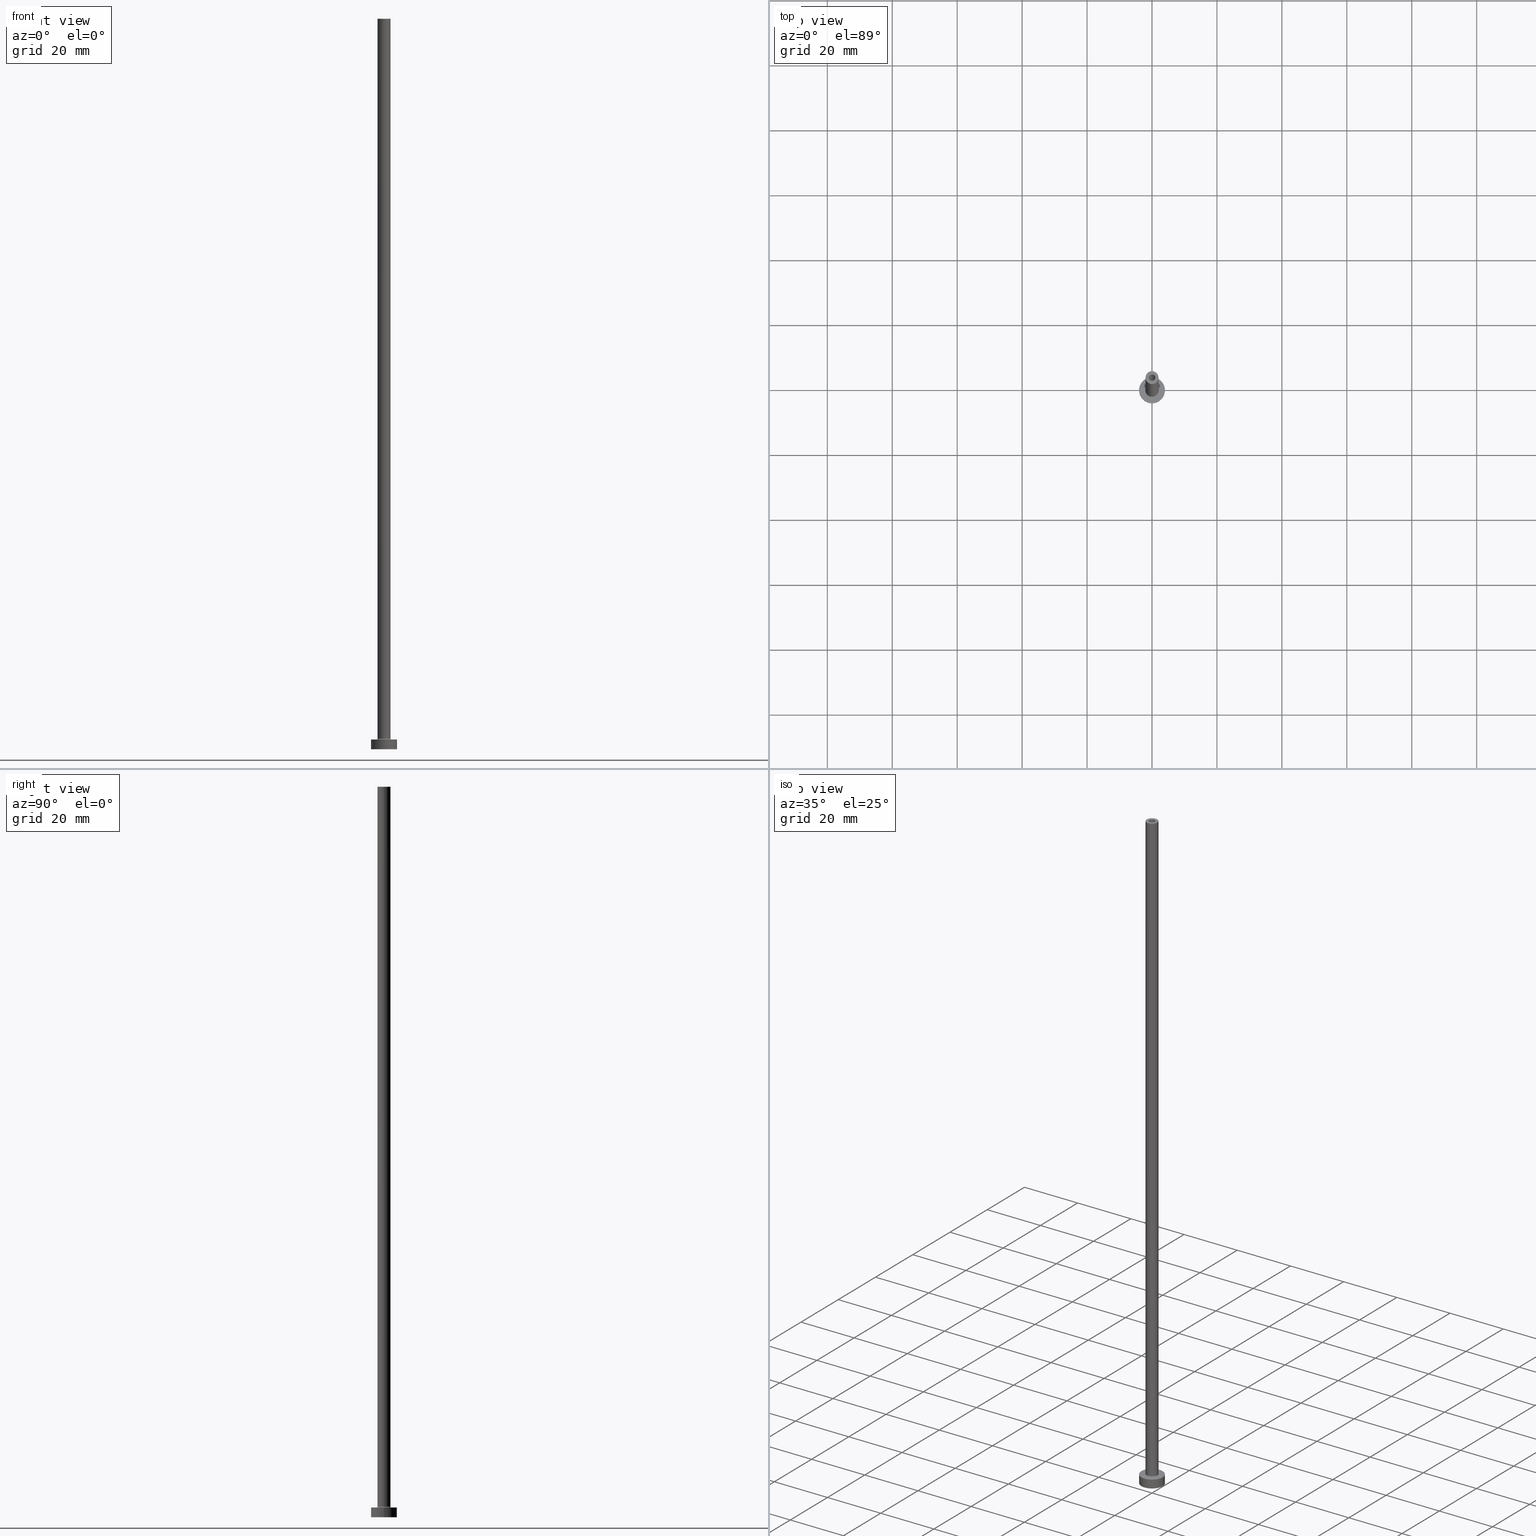
[diagram: canonical four-view strip — front | top / right | iso, engineering-drawing reading convention]
A machine part, canonical four-view strip (front | top / right | iso — engineering-drawing reading convention). The complete STEP part file that produces these views, byte-faithful:
ISO-10303-21;
HEADER;
FILE_DESCRIPTION (( 'STEP AP203' ),
    '1' );
FILE_NAME ('af51.STEP',
    '2023-02-13T18:17:22',
    ( '' ),
    ( '' ),
    'SwSTEP 2.0',
    'SolidWorks 2019',
    '' );
FILE_SCHEMA (( 'CONFIG_CONTROL_DESIGN' ));
ENDSEC;

DATA;
#1 = CARTESIAN_POINT ( 'NONE',  ( 0.000000000000000000, 0.000000000000000000, 190.0000000000000000 ) ) ;
#2 = VECTOR ( 'NONE', #95, 1000.000000000000000 ) ;
#3 = CALENDAR_DATE ( 2023, 13, 2 ) ;
#4 = ORIENTED_EDGE ( 'NONE', *, *, #236, .F. ) ;
#5 = FACE_OUTER_BOUND ( 'NONE', #201, .T. ) ;
#6 = EDGE_CURVE ( 'NONE', #162, #205, #80, .T. ) ;
#7 = VERTEX_POINT ( 'NONE', #375 ) ;
#8 =( LENGTH_UNIT ( ) NAMED_UNIT ( * ) SI_UNIT ( .MILLI., .METRE. ) );
#9 = APPLICATION_CONTEXT ( 'configuration controlled 3d designs of mechanical parts and assemblies' ) ;
#10 = ADVANCED_FACE ( 'NONE', ( #102 ), #255, .T. ) ;
#11 = DATE_AND_TIME ( #92, #49 ) ;
#12 = CIRCLE ( 'NONE', #332, 0.2999999999999999334 ) ;
#13 = EDGE_LOOP ( 'NONE', ( #421, #258, #54, #68 ) ) ;
#14 = COORDINATED_UNIVERSAL_TIME_OFFSET ( 1, 0, .AHEAD. ) ;
#15 = ORIENTED_EDGE ( 'NONE', *, *, #354, .T. ) ;
#16 = ORIENTED_EDGE ( 'NONE', *, *, #273, .T. ) ;
#17 = DATE_AND_TIME ( #403, #41 ) ;
#18 = CARTESIAN_POINT ( 'NONE',  ( 0.000000000000000000, 0.000000000000000000, 3.000000000000000000 ) ) ;
#19 = FACE_OUTER_BOUND ( 'NONE', #185, .T. ) ;
#20 = DIRECTION ( 'NONE',  ( 1.000000000000000000, 0.000000000000000000, 0.000000000000000000 ) ) ;
#21 = CIRCLE ( 'NONE', #78, 2.299999999999999822 ) ;
#22 = EDGE_CURVE ( 'NONE', #307, #224, #161, .T. ) ;
#23 = CARTESIAN_POINT ( 'NONE',  ( -1.149999999999999911, 0.000000000000000000, 193.2526911934581051 ) ) ;
#24 = AXIS2_PLACEMENT_3D ( 'NONE', #338, #232, #194 ) ;
#25 = FACE_OUTER_BOUND ( 'NONE', #455, .T. ) ;
#26 = PLANE ( 'NONE',  #357 ) ;
#27 = EDGE_LOOP ( 'NONE', ( #67, #368 ) ) ;
#28 = ORIENTED_EDGE ( 'NONE', *, *, #125, .T. ) ;
#29 = ORIENTED_EDGE ( 'NONE', *, *, #354, .F. ) ;
#30 = DIRECTION ( 'NONE',  ( -0.000000000000000000, -0.000000000000000000, -1.000000000000000000 ) ) ;
#31 = EDGE_CURVE ( 'NONE', #379, #105, #329, .T. ) ;
#32 = ORGANIZATION ( 'NEUR�EN�', 'NEUR�EN�', '' ) ;
#33 = FACE_OUTER_BOUND ( 'NONE', #365, .T. ) ;
#34 = LINE ( 'NONE', #276, #434 ) ;
#35 = ORIENTED_EDGE ( 'NONE', *, *, #414, .T. ) ;
#36 = DIRECTION ( 'NONE',  ( -0.000000000000000000, -0.000000000000000000, -1.000000000000000000 ) ) ;
#37 = APPLICATION_PROTOCOL_DEFINITION ( 'international standard', 'config_control_design', 1994, #389 ) ;
#38 = CALENDAR_DATE ( 2023, 13, 2 ) ;
#39 = CIRCLE ( 'NONE', #174, 2.299999999999999822 ) ;
#40 = APPROVAL_PERSON_ORGANIZATION ( #203, #335, #320 ) ;
#41 = LOCAL_TIME ( 19, 17, 22.00000000000000000, #252 ) ;
#42 = ORIENTED_EDGE ( 'NONE', *, *, #223, .T. ) ;
#43 = ADVANCED_FACE ( 'NONE', ( #19 ), #350, .T. ) ;
#44 = CARTESIAN_POINT ( 'NONE',  ( -1.000000000000000000, 0.000000000000000000, 225.0000000000000000 ) ) ;
#45 = AXIS2_PLACEMENT_3D ( 'NONE', #131, #343, #457 ) ;
#46 = DIRECTION ( 'NONE',  ( 1.000000000000000000, 0.000000000000000000, 0.000000000000000000 ) ) ;
#47 = AXIS2_PLACEMENT_3D ( 'NONE', #301, #30, #96 ) ;
#48 = ORIENTED_EDGE ( 'NONE', *, *, #207, .F. ) ;
#49 = LOCAL_TIME ( 19, 17, 22.00000000000000000, #289 ) ;
#50 = EDGE_CURVE ( 'NONE', #379, #226, #127, .T. ) ;
#51 = ORIENTED_EDGE ( 'NONE', *, *, #142, .T. ) ;
#52 = ORIENTED_EDGE ( 'NONE', *, *, #324, .F. ) ;
#53 = EDGE_LOOP ( 'NONE', ( #157, #155, #15, #372 ) ) ;
#54 = ORIENTED_EDGE ( 'NONE', *, *, #324, .T. ) ;
#55 = APPROVAL_PERSON_ORGANIZATION ( #124, #178, #183 ) ;
#56 = DIRECTION ( 'NONE',  ( -1.000000000000000000, 1.224646799147353207E-16, 0.000000000000000000 ) ) ;
#57 = PRODUCT_RELATED_PRODUCT_CATEGORY ( 'detail', '', ( #328 ) ) ;
#58 = PERSON ( 'NEUR�EN�', 'NEUR�EN�', 'NEUR�EN�', ('NEUR�EN�'), ('NEUR�EN�'), ('NEUR�EN�') ) ;
#59 = CARTESIAN_POINT ( 'NONE',  ( 2.000000000000000000, 2.449293598294706414E-16, 225.0000000000000000 ) ) ;
#60 = DIRECTION ( 'NONE',  ( -1.000000000000000000, 0.000000000000000000, 0.000000000000000000 ) ) ;
#61 = ORIENTED_EDGE ( 'NONE', *, *, #50, .T. ) ;
#62 = CARTESIAN_POINT ( 'NONE',  ( -4.000000000000000000, 0.000000000000000000, 3.000000000000000000 ) ) ;
#63 = DIRECTION ( 'NONE',  ( -1.000000000000000000, 0.000000000000000000, 0.000000000000000000 ) ) ;
#64 = CARTESIAN_POINT ( 'NONE',  ( 0.000000000000000000, 0.000000000000000000, 3.000000000000000000 ) ) ;
#65 = ORIENTED_EDGE ( 'NONE', *, *, #424, .T. ) ;
#66 = ADVANCED_FACE ( 'NONE', ( #316 ), #302, .F. ) ;
#67 = ORIENTED_EDGE ( 'NONE', *, *, #290, .T. ) ;
#68 = ORIENTED_EDGE ( 'NONE', *, *, #414, .F. ) ;
#69 = LINE ( 'NONE', #277, #239 ) ;
#70 = ORIENTED_EDGE ( 'NONE', *, *, #31, .T. ) ;
#71 = AXIS2_PLACEMENT_3D ( 'NONE', #1, #112, #46 ) ;
#72 = DIRECTION ( 'NONE',  ( 1.000000000000000000, 0.000000000000000000, 0.000000000000000000 ) ) ;
#73 = CARTESIAN_POINT ( 'NONE',  ( -2.000000000000000000, 0.000000000000000000, 3.299999999999997158 ) ) ;
#74 = DIRECTION ( 'NONE',  ( 1.000000000000000000, 0.000000000000000000, 0.000000000000000000 ) ) ;
#75 = EDGE_CURVE ( 'NONE', #331, #311, #85, .T. ) ;
#76 = DESIGN_CONTEXT ( 'detailed design', #389, 'design' ) ;
#77 = DIRECTION ( 'NONE',  ( 1.000000000000000000, 0.000000000000000000, 0.000000000000000000 ) ) ;
#78 = AXIS2_PLACEMENT_3D ( 'NONE', #309, #145, #319 ) ;
#79 = CARTESIAN_POINT ( 'NONE',  ( 0.000000000000000000, 0.000000000000000000, 3.299999999999997158 ) ) ;
#80 = CIRCLE ( 'NONE', #200, 0.2999999999999999334 ) ;
#81 = APPROVAL ( #82, 'NEUR�EN�' ) ;
#82 = APPROVAL_STATUS ( 'not_yet_approved' ) ;
#83 = VECTOR ( 'NONE', #166, 1000.000000000000000 ) ;
#84 = UNCERTAINTY_MEASURE_WITH_UNIT (LENGTH_MEASURE( 1.000000000000000082E-05 ), #8, 'distance_accuracy_value', 'NONE');
#85 = CIRCLE ( 'NONE', #374, 2.000000000000000000 ) ;
#86 = ORIENTED_EDGE ( 'NONE', *, *, #22, .T. ) ;
#87 = VERTEX_POINT ( 'NONE', #140 ) ;
#88 = PERSON_AND_ORGANIZATION_ROLE ( 'creator' ) ;
#89 = CARTESIAN_POINT ( 'NONE',  ( 0.000000000000000000, 0.000000000000000000, 225.0000000000000000 ) ) ;
#90 = CIRCLE ( 'NONE', #45, 2.000000000000000000 ) ;
#91 = EDGE_CURVE ( 'NONE', #253, #122, #323, .T. ) ;
#92 = CALENDAR_DATE ( 2023, 13, 2 ) ;
#93 = ORIENTED_EDGE ( 'NONE', *, *, #242, .F. ) ;
#94 = ORIENTED_EDGE ( 'NONE', *, *, #22, .F. ) ;
#95 = DIRECTION ( 'NONE',  ( -0.000000000000000000, -0.000000000000000000, -1.000000000000000000 ) ) ;
#96 = DIRECTION ( 'NONE',  ( -1.000000000000000000, 0.000000000000000000, 0.000000000000000000 ) ) ;
#97 = FACE_OUTER_BOUND ( 'NONE', #345, .T. ) ;
#98 = ORIENTED_EDGE ( 'NONE', *, *, #181, .F. ) ;
#99 = AXIS2_PLACEMENT_3D ( 'NONE', #299, #216, #371 ) ;
#100 = APPROVAL_DATE_TIME ( #130, #335 ) ;
#101 = VERTEX_POINT ( 'NONE', #264 ) ;
#102 = FACE_OUTER_BOUND ( 'NONE', #53, .T. ) ;
#103 = DIRECTION ( 'NONE',  ( 0.000000000000000000, 0.000000000000000000, 1.000000000000000000 ) ) ;
#104 = DIRECTION ( 'NONE',  ( 0.000000000000000000, 0.000000000000000000, -1.000000000000000000 ) ) ;
#105 = VERTEX_POINT ( 'NONE', #336 ) ;
#106 = DIRECTION ( 'NONE',  ( 0.000000000000000000, 0.000000000000000000, 1.000000000000000000 ) ) ;
#107 = CARTESIAN_POINT ( 'NONE',  ( 0.000000000000000000, 0.000000000000000000, 3.299999999999997158 ) ) ;
#108 = DIRECTION ( 'NONE',  ( 0.000000000000000000, 0.000000000000000000, 1.000000000000000000 ) ) ;
#109 = CARTESIAN_POINT ( 'NONE',  ( 0.000000000000000000, 0.000000000000000000, 225.0000000000000000 ) ) ;
#110 = DIRECTION ( 'NONE',  ( 1.000000000000000000, 0.000000000000000000, 0.000000000000000000 ) ) ;
#111 = DIRECTION ( 'NONE',  ( 0.000000000000000000, 0.000000000000000000, 1.000000000000000000 ) ) ;
#112 = DIRECTION ( 'NONE',  ( 0.000000000000000000, 0.000000000000000000, 1.000000000000000000 ) ) ;
#113 = CC_DESIGN_PERSON_AND_ORGANIZATION_ASSIGNMENT ( #281, #355, ( #328 ) ) ;
#114 = CIRCLE ( 'NONE', #420, 1.000000000000000000 ) ;
#115 = AXIS2_PLACEMENT_3D ( 'NONE', #376, #163, #63 ) ;
#116 = COORDINATED_UNIVERSAL_TIME_OFFSET ( 1, 0, .AHEAD. ) ;
#117 = DIRECTION ( 'NONE',  ( -1.000000000000000000, 0.000000000000000000, 0.000000000000000000 ) ) ;
#118 = CIRCLE ( 'NONE', #286, 2.000000000000000000 ) ;
#119 = ORIENTED_EDGE ( 'NONE', *, *, #300, .F. ) ;
#120 = CARTESIAN_POINT ( 'NONE',  ( -2.000000000000000000, 0.000000000000000000, 225.0000000000000000 ) ) ;
#121 = AXIS2_PLACEMENT_3D ( 'NONE', #283, #111, #298 ) ;
#122 = VERTEX_POINT ( 'NONE', #213 ) ;
#123 = CARTESIAN_POINT ( 'NONE',  ( 0.000000000000000000, 0.000000000000000000, 193.2526911934581051 ) ) ;
#124 = PERSON_AND_ORGANIZATION ( #58, #32 ) ;
#125 = EDGE_CURVE ( 'NONE', #224, #307, #220, .T. ) ;
#126 = AXIS2_PLACEMENT_3D ( 'NONE', #426, #195, #352 ) ;
#127 = LINE ( 'NONE', #23, #443 ) ;
#128 = ORIENTED_EDGE ( 'NONE', *, *, #156, .F. ) ;
#129 = EDGE_CURVE ( 'NONE', #122, #253, #390, .T. ) ;
#130 = DATE_AND_TIME ( #38, #244 ) ;
#131 = CARTESIAN_POINT ( 'NONE',  ( 0.000000000000000000, 0.000000000000000000, 225.0000000000000000 ) ) ;
#132 = ORIENTED_EDGE ( 'NONE', *, *, #436, .T. ) ;
#133 = ORIENTED_EDGE ( 'NONE', *, *, #204, .T. ) ;
#134 = AXIS2_PLACEMENT_3D ( 'NONE', #274, #104, #60 ) ;
#135 = DIRECTION ( 'NONE',  ( 1.000000000000000000, 0.000000000000000000, -0.000000000000000000 ) ) ;
#136 = PLANE ( 'NONE',  #198 ) ;
#137 = PLANE ( 'NONE',  #126 ) ;
#138 = ADVANCED_FACE ( 'NONE', ( #230, #33 ), #136, .T. ) ;
#139 = DIRECTION ( 'NONE',  ( 0.000000000000000000, 0.000000000000000000, -1.000000000000000000 ) ) ;
#140 = CARTESIAN_POINT ( 'NONE',  ( -4.000000000000000000, 0.000000000000000000, 0.000000000000000000 ) ) ;
#141 = DIRECTION ( 'NONE',  ( 0.000000000000000000, -1.000000000000000000, 0.000000000000000000 ) ) ;
#142 = EDGE_CURVE ( 'NONE', #331, #182, #456, .T. ) ;
#143 = CARTESIAN_POINT ( 'NONE',  ( 0.000000000000000000, 0.000000000000000000, 0.000000000000000000 ) ) ;
#144 = DIRECTION ( 'NONE',  ( 0.000000000000000000, 0.000000000000000000, 1.000000000000000000 ) ) ;
#145 = DIRECTION ( 'NONE',  ( -0.000000000000000000, -0.000000000000000000, -1.000000000000000000 ) ) ;
#146 = FACE_OUTER_BOUND ( 'NONE', #388, .T. ) ;
#147 = AXIS2_PLACEMENT_3D ( 'NONE', #123, #221, #262 ) ;
#148 = CYLINDRICAL_SURFACE ( 'NONE', #439, 1.000000000000000000 ) ;
#149 = AXIS2_PLACEMENT_3D ( 'NONE', #18, #440, #417 ) ;
#150 = APPROVAL_DATE_TIME ( #11, #81 ) ;
#151 = ORIENTED_EDGE ( 'NONE', *, *, #424, .F. ) ;
#152 = VECTOR ( 'NONE', #206, 1000.000000000000000 ) ;
#153 = VERTEX_POINT ( 'NONE', #247 ) ;
#154 = DATE_TIME_ROLE ( 'classification_date' ) ;
#155 = ORIENTED_EDGE ( 'NONE', *, *, #330, .F. ) ;
#156 = EDGE_CURVE ( 'NONE', #7, #226, #312, .T. ) ;
#157 = ORIENTED_EDGE ( 'NONE', *, *, #142, .F. ) ;
#158 = PERSON_AND_ORGANIZATION ( #58, #32 ) ;
#159 = ORIENTED_EDGE ( 'NONE', *, *, #6, .T. ) ;
#160 = CIRCLE ( 'NONE', #227, 1.000000000000000000 ) ;
#161 = CIRCLE ( 'NONE', #259, 4.000000000000000000 ) ;
#162 = VERTEX_POINT ( 'NONE', #73 ) ;
#163 = DIRECTION ( 'NONE',  ( -0.000000000000000000, -0.000000000000000000, -1.000000000000000000 ) ) ;
#164 = DIRECTION ( 'NONE',  ( 0.000000000000000000, 0.000000000000000000, 1.000000000000000000 ) ) ;
#165 = ORIENTED_EDGE ( 'NONE', *, *, #330, .T. ) ;
#166 = DIRECTION ( 'NONE',  ( 0.000000000000000000, 0.000000000000000000, -1.000000000000000000 ) ) ;
#167 = EDGE_LOOP ( 'NONE', ( #4, #128 ) ) ;
#168 =( GEOMETRIC_REPRESENTATION_CONTEXT ( 3 ) GLOBAL_UNCERTAINTY_ASSIGNED_CONTEXT ( ( #84 ) ) GLOBAL_UNIT_ASSIGNED_CONTEXT ( ( #8, #188, #438 ) ) REPRESENTATION_CONTEXT ( 'NONE', 'WORKASPACE' ) );
#169 = PERSON_AND_ORGANIZATION ( #58, #32 ) ;
#170 = DIRECTION ( 'NONE',  ( 1.000000000000000000, 0.000000000000000000, 0.000000000000000000 ) ) ;
#171 = ADVANCED_FACE ( 'NONE', ( #25 ), #297, .F. ) ;
#172 = DIRECTION ( 'NONE',  ( 0.000000000000000000, 0.000000000000000000, 1.000000000000000000 ) ) ;
#173 = CC_DESIGN_APPROVAL ( #335, ( #429 ) ) ;
#174 = AXIS2_PLACEMENT_3D ( 'NONE', #304, #445, #419 ) ;
#175 = DATE_AND_TIME ( #3, #373 ) ;
#176 = ORIENTED_EDGE ( 'NONE', *, *, #75, .T. ) ;
#177 = CIRCLE ( 'NONE', #99, 4.000000000000000000 ) ;
#178 = APPROVAL ( #342, 'NEUR�EN�' ) ;
#179 = ORIENTED_EDGE ( 'NONE', *, *, #207, .T. ) ;
#180 = CIRCLE ( 'NONE', #249, 1.149999999999999911 ) ;
#181 = EDGE_CURVE ( 'NONE', #153, #87, #177, .T. ) ;
#182 = VERTEX_POINT ( 'NONE', #409 ) ;
#183 = APPROVAL_ROLE ( '' ) ;
#184 = CARTESIAN_POINT ( 'NONE',  ( 0.000000000000000000, 0.000000000000000000, 3.000000000000000000 ) ) ;
#185 = EDGE_LOOP ( 'NONE', ( #448, #51, #246, #29 ) ) ;
#186 = APPROVAL_DATE_TIME ( #17, #178 ) ;
#187 = DIRECTION ( 'NONE',  ( -1.000000000000000000, 0.000000000000000000, 0.000000000000000000 ) ) ;
#188 =( NAMED_UNIT ( * ) PLANE_ANGLE_UNIT ( ) SI_UNIT ( $, .RADIAN. ) );
#189 = EDGE_CURVE ( 'NONE', #224, #87, #192, .T. ) ;
#190 = DIRECTION ( 'NONE',  ( 0.000000000000000000, 0.000000000000000000, -1.000000000000000000 ) ) ;
#191 = CLOSED_SHELL ( 'NONE', ( #211, #405, #432, #43, #197, #287, #138, #321, #10, #391, #66, #171, #260, #460 ) ) ;
#192 = LINE ( 'NONE', #62, #271 ) ;
#193 = CC_DESIGN_APPROVAL ( #178, ( #431 ) ) ;
#194 = DIRECTION ( 'NONE',  ( 1.000000000000000000, 0.000000000000000000, 0.000000000000000000 ) ) ;
#195 = DIRECTION ( 'NONE',  ( 0.000000000000000000, 0.000000000000000000, 1.000000000000000000 ) ) ;
#196 = ORIENTED_EDGE ( 'NONE', *, *, #454, .T. ) ;
#197 = ADVANCED_FACE ( 'NONE', ( #97 ), #254, .T. ) ;
#198 = AXIS2_PLACEMENT_3D ( 'NONE', #64, #164, #351 ) ;
#199 = APPLICATION_PROTOCOL_DEFINITION ( 'international standard', 'config_control_design', 1994, #9 ) ;
#200 = AXIS2_PLACEMENT_3D ( 'NONE', #418, #407, #56 ) ;
#201 = EDGE_LOOP ( 'NONE', ( #385, #48 ) ) ;
#202 = DIRECTION ( 'NONE',  ( 1.000000000000000000, 0.000000000000000000, 0.000000000000000000 ) ) ;
#203 = PERSON_AND_ORGANIZATION ( #58, #32 ) ;
#204 = EDGE_CURVE ( 'NONE', #315, #101, #160, .T. ) ;
#205 = VERTEX_POINT ( 'NONE', #325 ) ;
#206 = DIRECTION ( 'NONE',  ( 0.000000000000000000, 0.000000000000000000, -1.000000000000000000 ) ) ;
#207 = EDGE_CURVE ( 'NONE', #105, #379, #459, .T. ) ;
#208 = TOROIDAL_SURFACE ( 'NONE', #279, 2.299999999999999822, 0.2999999999999999889 ) ;
#209 = AXIS2_PLACEMENT_3D ( 'NONE', #89, #441, #187 ) ;
#210 = DIRECTION ( 'NONE',  ( 0.000000000000000000, 0.000000000000000000, -1.000000000000000000 ) ) ;
#211 = ADVANCED_FACE ( 'NONE', ( #146 ), #148, .F. ) ;
#212 = AXIS2_PLACEMENT_3D ( 'NONE', #234, #322, #202 ) ;
#213 = CARTESIAN_POINT ( 'NONE',  ( 1.000000000000000000, 1.224646799147353207E-16, 225.0000000000000000 ) ) ;
#214 = SECURITY_CLASSIFICATION_LEVEL ( 'unclassified' ) ;
#215 = DIRECTION ( 'NONE',  ( 1.000000000000000000, 0.000000000000000000, 0.000000000000000000 ) ) ;
#216 = DIRECTION ( 'NONE',  ( 0.000000000000000000, 0.000000000000000000, 1.000000000000000000 ) ) ;
#217 = EDGE_LOOP ( 'NONE', ( #165, #176 ) ) ;
#218 = DIRECTION ( 'NONE',  ( -1.000000000000000000, 0.000000000000000000, 0.000000000000000000 ) ) ;
#219 = CALENDAR_DATE ( 2023, 13, 2 ) ;
#220 = CIRCLE ( 'NONE', #149, 4.000000000000000000 ) ;
#221 = DIRECTION ( 'NONE',  ( 0.000000000000000000, 0.000000000000000000, -1.000000000000000000 ) ) ;
#222 = CYLINDRICAL_SURFACE ( 'NONE', #115, 4.000000000000000000 ) ;
#223 = EDGE_CURVE ( 'NONE', #122, #101, #430, .T. ) ;
#224 = VERTEX_POINT ( 'NONE', #356 ) ;
#225 = FACE_OUTER_BOUND ( 'NONE', #250, .T. ) ;
#226 = VERTEX_POINT ( 'NONE', #284 ) ;
#227 = AXIS2_PLACEMENT_3D ( 'NONE', #228, #381, #20 ) ;
#228 = CARTESIAN_POINT ( 'NONE',  ( 0.000000000000000000, 0.000000000000000000, 190.0000000000000000 ) ) ;
#229 = PERSON_AND_ORGANIZATION_ROLE ( 'creator' ) ;
#230 = FACE_BOUND ( 'NONE', #27, .T. ) ;
#231 = ORIENTED_EDGE ( 'NONE', *, *, #236, .T. ) ;
#232 = DIRECTION ( 'NONE',  ( 0.000000000000000000, 0.000000000000000000, 1.000000000000000000 ) ) ;
#233 = DIRECTION ( 'NONE',  ( 1.000000000000000000, 0.000000000000000000, 0.000000000000000000 ) ) ;
#234 = CARTESIAN_POINT ( 'NONE',  ( 0.000000000000000000, 0.000000000000000000, 0.000000000000000000 ) ) ;
#235 = CARTESIAN_POINT ( 'NONE',  ( 0.000000000000000000, 0.000000000000000000, 190.0000000000000000 ) ) ;
#236 = EDGE_CURVE ( 'NONE', #226, #7, #180, .T. ) ;
#237 = FACE_OUTER_BOUND ( 'NONE', #217, .T. ) ;
#238 = MANIFOLD_SOLID_BREP ( 'Odebrat vysunut�m4', #191 ) ;
#239 = VECTOR ( 'NONE', #442, 1000.000000000000000 ) ;
#240 = FACE_BOUND ( 'NONE', #401, .T. ) ;
#241 = EDGE_LOOP ( 'NONE', ( #270, #291, #306, #196 ) ) ;
#242 = EDGE_CURVE ( 'NONE', #182, #162, #118, .T. ) ;
#243 = DIRECTION ( 'NONE',  ( 0.000000000000000000, 0.000000000000000000, -1.000000000000000000 ) ) ;
#244 = LOCAL_TIME ( 19, 17, 22.00000000000000000, #428 ) ;
#245 = FACE_OUTER_BOUND ( 'NONE', #292, .T. ) ;
#246 = ORIENTED_EDGE ( 'NONE', *, *, #242, .T. ) ;
#247 = CARTESIAN_POINT ( 'NONE',  ( 4.000000000000000000, 4.898587196589412829E-16, 0.000000000000000000 ) ) ;
#248 = CC_DESIGN_DATE_AND_TIME_ASSIGNMENT ( #175, #398, ( #429 ) ) ;
#249 = AXIS2_PLACEMENT_3D ( 'NONE', #143, #397, #110 ) ;
#250 = EDGE_LOOP ( 'NONE', ( #296, #98 ) ) ;
#251 = CC_DESIGN_DATE_AND_TIME_ASSIGNMENT ( #256, #154, ( #431 ) ) ;
#252 = COORDINATED_UNIVERSAL_TIME_OFFSET ( 1, 0, .AHEAD. ) ;
#253 = VERTEX_POINT ( 'NONE', #44 ) ;
#254 = CYLINDRICAL_SURFACE ( 'NONE', #257, 4.000000000000000000 ) ;
#255 = CYLINDRICAL_SURFACE ( 'NONE', #209, 2.000000000000000000 ) ;
#256 = DATE_AND_TIME ( #219, #353 ) ;
#257 = AXIS2_PLACEMENT_3D ( 'NONE', #184, #267, #218 ) ;
#258 = ORIENTED_EDGE ( 'NONE', *, *, #129, .T. ) ;
#259 = AXIS2_PLACEMENT_3D ( 'NONE', #413, #334, #215 ) ;
#260 = ADVANCED_FACE ( 'NONE', ( #326, #5 ), #288, .F. ) ;
#261 = PERSON_AND_ORGANIZATION_ROLE ( 'classification_officer' ) ;
#262 = DIRECTION ( 'NONE',  ( -1.000000000000000000, 0.000000000000000000, 0.000000000000000000 ) ) ;
#263 = FACE_OUTER_BOUND ( 'NONE', #241, .T. ) ;
#264 = CARTESIAN_POINT ( 'NONE',  ( 1.000000000000000000, 1.224646799147353207E-16, 190.0000000000000000 ) ) ;
#265 = ORIENTED_EDGE ( 'NONE', *, *, #91, .T. ) ;
#266 = ORIENTED_EDGE ( 'NONE', *, *, #290, .F. ) ;
#267 = DIRECTION ( 'NONE',  ( -0.000000000000000000, -0.000000000000000000, -1.000000000000000000 ) ) ;
#268 = PRODUCT_DEFINITION_SHAPE ( 'NONE', 'NONE',  #429 ) ;
#269 = CARTESIAN_POINT ( 'NONE',  ( -1.149999999999999911, 0.000000000000000000, 190.0000000000000000 ) ) ;
#270 = ORIENTED_EDGE ( 'NONE', *, *, #273, .F. ) ;
#271 = VECTOR ( 'NONE', #303, 1000.000000000000000 ) ;
#272 = DIRECTION ( 'NONE',  ( 1.000000000000000000, 0.000000000000000000, 0.000000000000000000 ) ) ;
#273 = EDGE_CURVE ( 'NONE', #307, #153, #69, .T. ) ;
#274 = CARTESIAN_POINT ( 'NONE',  ( 0.000000000000000000, 0.000000000000000000, 193.2526911934581051 ) ) ;
#275 = MECHANICAL_CONTEXT ( 'NONE', #9, 'mechanical' ) ;
#276 = CARTESIAN_POINT ( 'NONE',  ( -2.000000000000000000, 0.000000000000000000, 225.0000000000000000 ) ) ;
#277 = CARTESIAN_POINT ( 'NONE',  ( 4.000000000000000000, 4.898587196589412829E-16, 3.000000000000000000 ) ) ;
#278 = CARTESIAN_POINT ( 'NONE',  ( -1.000000000000000000, 0.000000000000000000, 190.0000000000000000 ) ) ;
#279 = AXIS2_PLACEMENT_3D ( 'NONE', #305, #411, #272 ) ;
#280 = PERSON_AND_ORGANIZATION ( #58, #32 ) ;
#281 = PERSON_AND_ORGANIZATION ( #58, #32 ) ;
#282 = AXIS2_PLACEMENT_3D ( 'NONE', #79, #453, #72 ) ;
#283 = CARTESIAN_POINT ( 'NONE',  ( 0.000000000000000000, 0.000000000000000000, 225.0000000000000000 ) ) ;
#284 = CARTESIAN_POINT ( 'NONE',  ( -1.149999999999999911, 0.000000000000000000, 0.000000000000000000 ) ) ;
#285 = DIRECTION ( 'NONE',  ( 0.000000000000000000, 0.000000000000000000, -1.000000000000000000 ) ) ;
#286 = AXIS2_PLACEMENT_3D ( 'NONE', #359, #395, #77 ) ;
#287 = ADVANCED_FACE ( 'NONE', ( #263 ), #222, .T. ) ;
#288 = PLANE ( 'NONE',  #327 ) ;
#289 = COORDINATED_UNIVERSAL_TIME_OFFSET ( 1, 0, .AHEAD. ) ;
#290 = EDGE_CURVE ( 'NONE', #444, #205, #39, .T. ) ;
#291 = ORIENTED_EDGE ( 'NONE', *, *, #125, .F. ) ;
#292 = EDGE_LOOP ( 'NONE', ( #349, #159, #266, #151 ) ) ;
#293 = VECTOR ( 'NONE', #190, 1000.000000000000000 ) ;
#294 = EDGE_LOOP ( 'NONE', ( #70, #132, #447, #363 ) ) ;
#295 = CARTESIAN_POINT ( 'NONE',  ( 4.000000000000000000, 4.898587196589412829E-16, 3.000000000000000000 ) ) ;
#296 = ORIENTED_EDGE ( 'NONE', *, *, #454, .F. ) ;
#297 = CYLINDRICAL_SURFACE ( 'NONE', #147, 1.149999999999999911 ) ;
#298 = DIRECTION ( 'NONE',  ( 1.000000000000000000, 0.000000000000000000, 0.000000000000000000 ) ) ;
#299 = CARTESIAN_POINT ( 'NONE',  ( 0.000000000000000000, 0.000000000000000000, 0.000000000000000000 ) ) ;
#300 = EDGE_CURVE ( 'NONE', #205, #444, #21, .T. ) ;
#301 = CARTESIAN_POINT ( 'NONE',  ( 0.000000000000000000, 0.000000000000000000, 225.0000000000000000 ) ) ;
#302 = TOROIDAL_SURFACE ( 'NONE', #282, 2.299999999999999822, 0.2999999999999999889 ) ;
#303 = DIRECTION ( 'NONE',  ( -0.000000000000000000, -0.000000000000000000, -1.000000000000000000 ) ) ;
#304 = CARTESIAN_POINT ( 'NONE',  ( 0.000000000000000000, 0.000000000000000000, 3.000000000000000000 ) ) ;
#305 = CARTESIAN_POINT ( 'NONE',  ( 0.000000000000000000, 0.000000000000000000, 3.299999999999997158 ) ) ;
#306 = ORIENTED_EDGE ( 'NONE', *, *, #189, .T. ) ;
#307 = VERTEX_POINT ( 'NONE', #295 ) ;
#308 = CC_DESIGN_PERSON_AND_ORGANIZATION_ASSIGNMENT ( #400, #88, ( #412 ) ) ;
#309 = CARTESIAN_POINT ( 'NONE',  ( 0.000000000000000000, 0.000000000000000000, 3.000000000000000000 ) ) ;
#310 = CARTESIAN_POINT ( 'NONE',  ( 0.000000000000000000, 0.000000000000000000, 225.0000000000000000 ) ) ;
#311 = VERTEX_POINT ( 'NONE', #120 ) ;
#312 = CIRCLE ( 'NONE', #399, 1.149999999999999911 ) ;
#313 = CYLINDRICAL_SURFACE ( 'NONE', #452, 1.000000000000000000 ) ;
#314 = CYLINDRICAL_SURFACE ( 'NONE', #134, 1.149999999999999911 ) ;
#315 = VERTEX_POINT ( 'NONE', #278 ) ;
#316 = FACE_OUTER_BOUND ( 'NONE', #380, .T. ) ;
#317 = DIRECTION ( 'NONE',  ( 1.000000000000000000, 0.000000000000000000, -0.000000000000000000 ) ) ;
#318 = FACE_BOUND ( 'NONE', #167, .T. ) ;
#319 = DIRECTION ( 'NONE',  ( 1.000000000000000000, 0.000000000000000000, 0.000000000000000000 ) ) ;
#320 = APPROVAL_ROLE ( '' ) ;
#321 = ADVANCED_FACE ( 'NONE', ( #318, #225 ), #137, .F. ) ;
#322 = DIRECTION ( 'NONE',  ( 0.000000000000000000, 0.000000000000000000, 1.000000000000000000 ) ) ;
#323 = CIRCLE ( 'NONE', #121, 1.000000000000000000 ) ;
#324 = EDGE_CURVE ( 'NONE', #253, #315, #446, .T. ) ;
#325 = CARTESIAN_POINT ( 'NONE',  ( -2.299999999999999822, 2.816687638038912056E-16, 2.999999999999998668 ) ) ;
#326 = FACE_BOUND ( 'NONE', #383, .T. ) ;
#327 = AXIS2_PLACEMENT_3D ( 'NONE', #415, #384, #317 ) ;
#328 = PRODUCT ( 'af51', 'af51', '', ( #275 ) ) ;
#329 = CIRCLE ( 'NONE', #24, 1.149999999999999911 ) ;
#330 = EDGE_CURVE ( 'NONE', #311, #331, #90, .T. ) ;
#331 = VERTEX_POINT ( 'NONE', #416 ) ;
#332 = AXIS2_PLACEMENT_3D ( 'NONE', #461, #141, #139 ) ;
#333 = ORIENTED_EDGE ( 'NONE', *, *, #91, .F. ) ;
#334 = DIRECTION ( 'NONE',  ( 0.000000000000000000, 0.000000000000000000, 1.000000000000000000 ) ) ;
#335 = APPROVAL ( #450, 'NEUR�EN�' ) ;
#336 = CARTESIAN_POINT ( 'NONE',  ( 1.149999999999999911, 1.408343819019456028E-16, 190.0000000000000000 ) ) ;
#337 = ADVANCED_BREP_SHAPE_REPRESENTATION ( 'af51', ( #238, #212 ), #168 ) ;
#338 = CARTESIAN_POINT ( 'NONE',  ( 0.000000000000000000, 0.000000000000000000, 190.0000000000000000 ) ) ;
#339 = DIRECTION ( 'NONE',  ( 0.000000000000000000, 0.000000000000000000, 1.000000000000000000 ) ) ;
#340 = CIRCLE ( 'NONE', #369, 4.000000000000000000 ) ;
#341 = ORIENTED_EDGE ( 'NONE', *, *, #204, .F. ) ;
#342 = APPROVAL_STATUS ( 'not_yet_approved' ) ;
#343 = DIRECTION ( 'NONE',  ( 0.000000000000000000, 0.000000000000000000, 1.000000000000000000 ) ) ;
#344 = CC_DESIGN_PERSON_AND_ORGANIZATION_ASSIGNMENT ( #367, #406, ( #412 ) ) ;
#345 = EDGE_LOOP ( 'NONE', ( #94, #16, #346, #410 ) ) ;
#346 = ORIENTED_EDGE ( 'NONE', *, *, #181, .T. ) ;
#347 = CC_DESIGN_APPROVAL ( #81, ( #412 ) ) ;
#348 = CARTESIAN_POINT ( 'NONE',  ( -1.000000000000000000, 0.000000000000000000, 225.0000000000000000 ) ) ;
#349 = ORIENTED_EDGE ( 'NONE', *, *, #377, .F. ) ;
#350 = CYLINDRICAL_SURFACE ( 'NONE', #47, 2.000000000000000000 ) ;
#351 = DIRECTION ( 'NONE',  ( 1.000000000000000000, 0.000000000000000000, -0.000000000000000000 ) ) ;
#352 = DIRECTION ( 'NONE',  ( 1.000000000000000000, 0.000000000000000000, -0.000000000000000000 ) ) ;
#353 = LOCAL_TIME ( 19, 17, 22.00000000000000000, #14 ) ;
#354 = EDGE_CURVE ( 'NONE', #311, #162, #34, .T. ) ;
#355 = PERSON_AND_ORGANIZATION_ROLE ( 'design_owner' ) ;
#356 = CARTESIAN_POINT ( 'NONE',  ( -4.000000000000000000, 0.000000000000000000, 3.000000000000000000 ) ) ;
#357 = AXIS2_PLACEMENT_3D ( 'NONE', #310, #339, #135 ) ;
#358 = CARTESIAN_POINT ( 'NONE',  ( 1.000000000000000000, 1.224646799147353207E-16, 225.0000000000000000 ) ) ;
#359 = CARTESIAN_POINT ( 'NONE',  ( 0.000000000000000000, 0.000000000000000000, 3.299999999999997158 ) ) ;
#360 = DIRECTION ( 'NONE',  ( 1.000000000000000000, 0.000000000000000000, 0.000000000000000000 ) ) ;
#361 = CIRCLE ( 'NONE', #427, 2.000000000000000000 ) ;
#362 = CC_DESIGN_SECURITY_CLASSIFICATION ( #431, ( #412 ) ) ;
#363 = ORIENTED_EDGE ( 'NONE', *, *, #50, .F. ) ;
#364 = DIRECTION ( 'NONE',  ( -1.000000000000000000, 0.000000000000000000, 0.000000000000000000 ) ) ;
#365 = EDGE_LOOP ( 'NONE', ( #28, #86 ) ) ;
#366 = SHAPE_DEFINITION_REPRESENTATION ( #268, #337 ) ;
#367 = PERSON_AND_ORGANIZATION ( #58, #32 ) ;
#368 = ORIENTED_EDGE ( 'NONE', *, *, #300, .T. ) ;
#369 = AXIS2_PLACEMENT_3D ( 'NONE', #449, #103, #233 ) ;
#370 = CC_DESIGN_PERSON_AND_ORGANIZATION_ASSIGNMENT ( #158, #261, ( #431 ) ) ;
#371 = DIRECTION ( 'NONE',  ( 1.000000000000000000, 0.000000000000000000, 0.000000000000000000 ) ) ;
#372 = ORIENTED_EDGE ( 'NONE', *, *, #377, .T. ) ;
#373 = LOCAL_TIME ( 19, 17, 22.00000000000000000, #116 ) ;
#374 = AXIS2_PLACEMENT_3D ( 'NONE', #458, #108, #74 ) ;
#375 = CARTESIAN_POINT ( 'NONE',  ( 1.149999999999999911, 1.408343819019456028E-16, 0.000000000000000000 ) ) ;
#376 = CARTESIAN_POINT ( 'NONE',  ( 0.000000000000000000, 0.000000000000000000, 3.000000000000000000 ) ) ;
#377 = EDGE_CURVE ( 'NONE', #162, #182, #361, .T. ) ;
#378 = CARTESIAN_POINT ( 'NONE',  ( 0.000000000000000000, 0.000000000000000000, 225.0000000000000000 ) ) ;
#379 = VERTEX_POINT ( 'NONE', #269 ) ;
#380 = EDGE_LOOP ( 'NONE', ( #435, #93, #65, #119 ) ) ;
#381 = DIRECTION ( 'NONE',  ( 0.000000000000000000, 0.000000000000000000, 1.000000000000000000 ) ) ;
#382 = CARTESIAN_POINT ( 'NONE',  ( 1.149999999999999911, 1.408343819019456028E-16, 193.2526911934581051 ) ) ;
#383 = EDGE_LOOP ( 'NONE', ( #133, #35 ) ) ;
#384 = DIRECTION ( 'NONE',  ( 0.000000000000000000, 0.000000000000000000, 1.000000000000000000 ) ) ;
#385 = ORIENTED_EDGE ( 'NONE', *, *, #31, .F. ) ;
#386 = FACE_OUTER_BOUND ( 'NONE', #13, .T. ) ;
#387 = DIRECTION ( 'NONE',  ( 1.000000000000000000, 0.000000000000000000, 0.000000000000000000 ) ) ;
#388 = EDGE_LOOP ( 'NONE', ( #265, #42, #341, #52 ) ) ;
#389 = APPLICATION_CONTEXT ( 'configuration controlled 3d designs of mechanical parts and assemblies' ) ;
#390 = CIRCLE ( 'NONE', #408, 1.000000000000000000 ) ;
#391 = ADVANCED_FACE ( 'NONE', ( #240, #237 ), #26, .T. ) ;
#392 = DIRECTION ( 'NONE',  ( 1.000000000000000000, 0.000000000000000000, 0.000000000000000000 ) ) ;
#393 = CARTESIAN_POINT ( 'NONE',  ( 0.000000000000000000, 0.000000000000000000, 0.000000000000000000 ) ) ;
#394 = LINE ( 'NONE', #382, #83 ) ;
#395 = DIRECTION ( 'NONE',  ( 0.000000000000000000, 0.000000000000000000, 1.000000000000000000 ) ) ;
#396 = CC_DESIGN_PERSON_AND_ORGANIZATION_ASSIGNMENT ( #169, #229, ( #429 ) ) ;
#397 = DIRECTION ( 'NONE',  ( -0.000000000000000000, -0.000000000000000000, -1.000000000000000000 ) ) ;
#398 = DATE_TIME_ROLE ( 'creation_date' ) ;
#399 = AXIS2_PLACEMENT_3D ( 'NONE', #393, #425, #392 ) ;
#400 = PERSON_AND_ORGANIZATION ( #58, #32 ) ;
#401 = EDGE_LOOP ( 'NONE', ( #333, #433 ) ) ;
#402 = CARTESIAN_POINT ( 'NONE',  ( 0.000000000000000000, 0.000000000000000000, 225.0000000000000000 ) ) ;
#403 = CALENDAR_DATE ( 2023, 13, 2 ) ;
#404 = APPROVAL_PERSON_ORGANIZATION ( #280, #81, #437 ) ;
#405 = ADVANCED_FACE ( 'NONE', ( #451 ), #314, .F. ) ;
#406 = PERSON_AND_ORGANIZATION_ROLE ( 'design_supplier' ) ;
#407 = DIRECTION ( 'NONE',  ( 1.224646799147353207E-16, 1.000000000000000000, -0.000000000000000000 ) ) ;
#408 = AXIS2_PLACEMENT_3D ( 'NONE', #378, #172, #170 ) ;
#409 = CARTESIAN_POINT ( 'NONE',  ( 2.000000000000000000, 2.449293598294706414E-16, 3.299999999999997158 ) ) ;
#410 = ORIENTED_EDGE ( 'NONE', *, *, #189, .F. ) ;
#411 = DIRECTION ( 'NONE',  ( 0.000000000000000000, 0.000000000000000000, 1.000000000000000000 ) ) ;
#412 = PRODUCT_DEFINITION_FORMATION_WITH_SPECIFIED_SOURCE ( 'LIBOVOLN�', '', #328, .NOT_KNOWN. ) ;
#413 = CARTESIAN_POINT ( 'NONE',  ( 0.000000000000000000, 0.000000000000000000, 3.000000000000000000 ) ) ;
#414 = EDGE_CURVE ( 'NONE', #101, #315, #114, .T. ) ;
#415 = CARTESIAN_POINT ( 'NONE',  ( 0.000000000000000000, 0.000000000000000000, 190.0000000000000000 ) ) ;
#416 = CARTESIAN_POINT ( 'NONE',  ( 2.000000000000000000, 2.449293598294706414E-16, 225.0000000000000000 ) ) ;
#417 = DIRECTION ( 'NONE',  ( 1.000000000000000000, 0.000000000000000000, 0.000000000000000000 ) ) ;
#418 = CARTESIAN_POINT ( 'NONE',  ( -2.299999999999999822, 2.816687638038912056E-16, 3.299999999999997158 ) ) ;
#419 = DIRECTION ( 'NONE',  ( 1.000000000000000000, 0.000000000000000000, 0.000000000000000000 ) ) ;
#420 = AXIS2_PLACEMENT_3D ( 'NONE', #235, #144, #360 ) ;
#421 = ORIENTED_EDGE ( 'NONE', *, *, #223, .F. ) ;
#422 = ORIENTED_EDGE ( 'NONE', *, *, #436, .F. ) ;
#423 = CARTESIAN_POINT ( 'NONE',  ( 2.299999999999999822, 0.000000000000000000, 2.999999999999998668 ) ) ;
#424 = EDGE_CURVE ( 'NONE', #182, #444, #12, .T. ) ;
#425 = DIRECTION ( 'NONE',  ( -0.000000000000000000, -0.000000000000000000, -1.000000000000000000 ) ) ;
#426 = CARTESIAN_POINT ( 'NONE',  ( 0.000000000000000000, 0.000000000000000000, 0.000000000000000000 ) ) ;
#427 = AXIS2_PLACEMENT_3D ( 'NONE', #107, #106, #387 ) ;
#428 = COORDINATED_UNIVERSAL_TIME_OFFSET ( 1, 0, .AHEAD. ) ;
#429 = PRODUCT_DEFINITION ( 'NEZN�M�', '', #412, #76 ) ;
#430 = LINE ( 'NONE', #358, #152 ) ;
#431 = SECURITY_CLASSIFICATION ( '', '', #214 ) ;
#432 = ADVANCED_FACE ( 'NONE', ( #245 ), #208, .F. ) ;
#433 = ORIENTED_EDGE ( 'NONE', *, *, #129, .F. ) ;
#434 = VECTOR ( 'NONE', #36, 1000.000000000000000 ) ;
#435 = ORIENTED_EDGE ( 'NONE', *, *, #6, .F. ) ;
#436 = EDGE_CURVE ( 'NONE', #105, #7, #394, .T. ) ;
#437 = APPROVAL_ROLE ( '' ) ;
#438 =( NAMED_UNIT ( * ) SI_UNIT ( $, .STERADIAN. ) SOLID_ANGLE_UNIT ( ) );
#439 = AXIS2_PLACEMENT_3D ( 'NONE', #109, #243, #117 ) ;
#440 = DIRECTION ( 'NONE',  ( 0.000000000000000000, 0.000000000000000000, 1.000000000000000000 ) ) ;
#441 = DIRECTION ( 'NONE',  ( -0.000000000000000000, -0.000000000000000000, -1.000000000000000000 ) ) ;
#442 = DIRECTION ( 'NONE',  ( -0.000000000000000000, -0.000000000000000000, -1.000000000000000000 ) ) ;
#443 = VECTOR ( 'NONE', #285, 1000.000000000000000 ) ;
#444 = VERTEX_POINT ( 'NONE', #423 ) ;
#445 = DIRECTION ( 'NONE',  ( -0.000000000000000000, -0.000000000000000000, -1.000000000000000000 ) ) ;
#446 = LINE ( 'NONE', #348, #293 ) ;
#447 = ORIENTED_EDGE ( 'NONE', *, *, #156, .T. ) ;
#448 = ORIENTED_EDGE ( 'NONE', *, *, #75, .F. ) ;
#449 = CARTESIAN_POINT ( 'NONE',  ( 0.000000000000000000, 0.000000000000000000, 0.000000000000000000 ) ) ;
#450 = APPROVAL_STATUS ( 'not_yet_approved' ) ;
#451 = FACE_OUTER_BOUND ( 'NONE', #294, .T. ) ;
#452 = AXIS2_PLACEMENT_3D ( 'NONE', #402, #210, #364 ) ;
#453 = DIRECTION ( 'NONE',  ( 0.000000000000000000, 0.000000000000000000, 1.000000000000000000 ) ) ;
#454 = EDGE_CURVE ( 'NONE', #87, #153, #340, .T. ) ;
#455 = EDGE_LOOP ( 'NONE', ( #422, #179, #61, #231 ) ) ;
#456 = LINE ( 'NONE', #59, #2 ) ;
#457 = DIRECTION ( 'NONE',  ( 1.000000000000000000, 0.000000000000000000, 0.000000000000000000 ) ) ;
#458 = CARTESIAN_POINT ( 'NONE',  ( 0.000000000000000000, 0.000000000000000000, 225.0000000000000000 ) ) ;
#459 = CIRCLE ( 'NONE', #71, 1.149999999999999911 ) ;
#460 = ADVANCED_FACE ( 'NONE', ( #386 ), #313, .F. ) ;
#461 = CARTESIAN_POINT ( 'NONE',  ( 2.299999999999999822, 0.000000000000000000, 3.299999999999997158 ) ) ;
ENDSEC;
END-ISO-10303-21;
